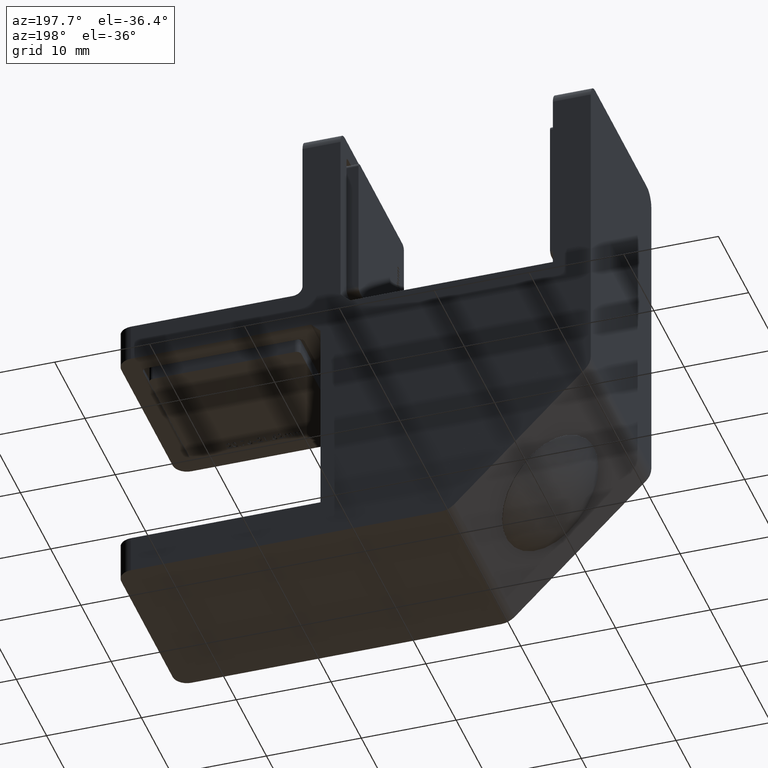
[diagram: clean part render]
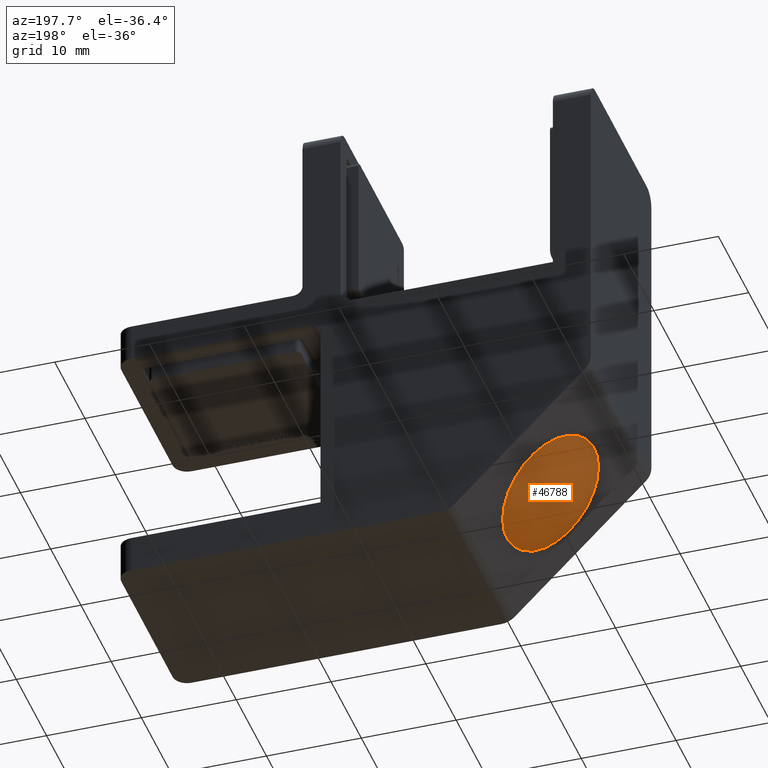
[diagram: same view with one face highlighted and labeled with its STEP entity id]
A machine part, auxiliary view. The second image highlights one B-rep face of the part: STEP entity #46788.
In plain terms, the highlighted spherical surface has radius 11.5072 mm.
Its self-contained STEP definition (entity closure, byte-faithful):
#3637 = CARTESIAN_POINT ( 'NONE',  ( 5.754763525167327271E-16, 0.09123262986911184758, 0.000000000000000000 ) ) ;
#4371 = SPHERICAL_SURFACE ( 'NONE', #34116, 11.50723918780681210 ) ;
#9635 = EDGE_CURVE ( 'NONE', #39151, #39151, #44497, .T. ) ;
#12477 = CARTESIAN_POINT ( 'NONE',  ( 5.754763525167327271E-16, 0.09123262986911184758, -6.508949525813583215 ) ) ;
#15989 = CARTESIAN_POINT ( 'NONE',  ( 5.754763525167327271E-16, -9.398242055054595312, 0.000000000000000000 ) ) ;
#20182 = DIRECTION ( 'NONE',  ( 0.000000000000000000, 0.000000000000000000, 1.000000000000000000 ) ) ;
#28515 = FACE_OUTER_BOUND ( 'NONE', #61544, .T. ) ;
#31944 = DIRECTION ( 'NONE',  ( 0.000000000000000000, 1.000000000000000000, 0.000000000000000000 ) ) ;
#34116 = AXIS2_PLACEMENT_3D ( 'NONE', #15989, #20182, #39382 ) ;
#37397 = ORIENTED_EDGE ( 'NONE', *, *, #9635, .T. ) ;
#39151 = VERTEX_POINT ( 'NONE', #12477 ) ;
#39382 = DIRECTION ( 'NONE',  ( 1.000000000000000000, 0.000000000000000000, 0.000000000000000000 ) ) ;
#44497 = CIRCLE ( 'NONE', #44570, 6.508949525813583215 ) ;
#44570 = AXIS2_PLACEMENT_3D ( 'NONE', #3637, #31944, #52159 ) ;
#46788 = ADVANCED_FACE ( 'NONE', ( #28515 ), #4371, .T. ) ;
#52159 = DIRECTION ( 'NONE',  ( 0.000000000000000000, 0.000000000000000000, -1.000000000000000000 ) ) ;
#61544 = EDGE_LOOP ( 'NONE', ( #37397 ) ) ;